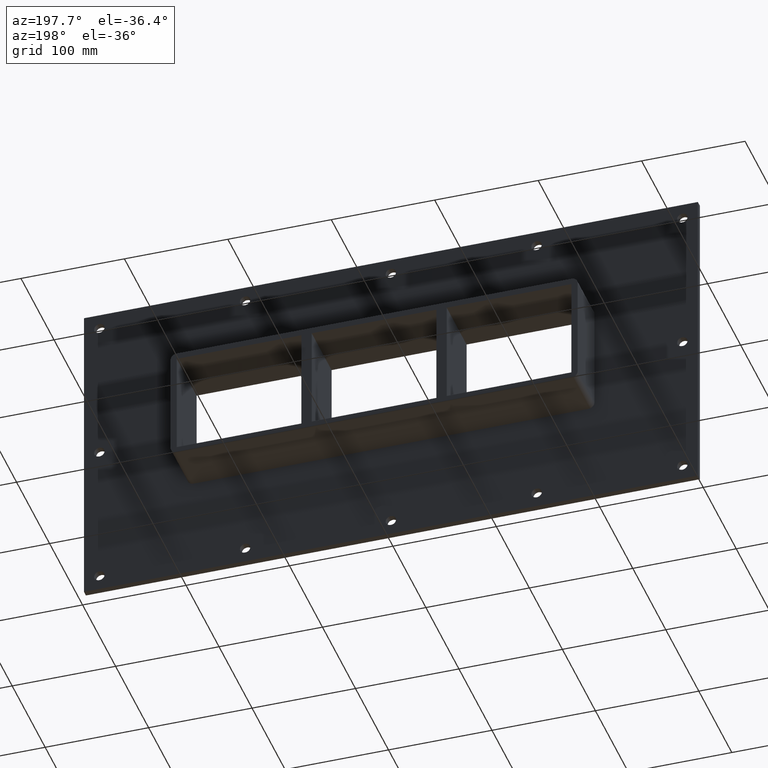
[diagram: clean part render]
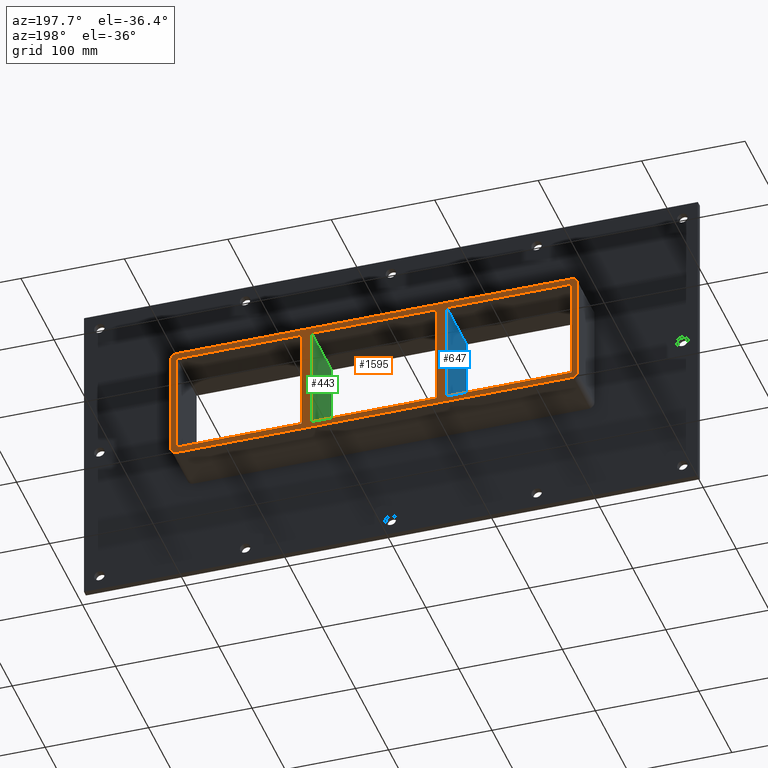
[diagram: same view with three faces highlighted in distinct colors, each labeled with its STEP entity id]
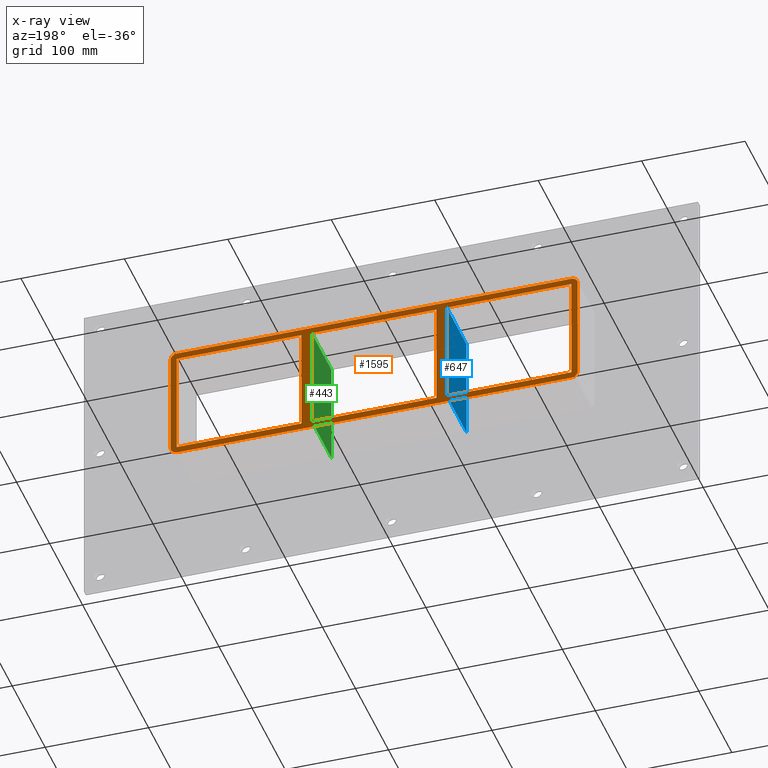
[diagram: x-ray of the same camera — body ghosted, the three highlighted faces saturated]
A machine part, auxiliary view with three faces highlighted in distinct colors.
The next image is the same camera in x-ray (body ghosted, the three faces saturated) — at least one of them is partly hidden behind the body in this view.
Their STEP definitions:

[orange] entity #1595 — the highlighted planar face has unit normal (0, 1, 0).
#419=CARTESIAN_POINT('',(60.249999999998671,57.0,50.500000000000007));
#420=VERTEX_POINT('',#419);
#427=CARTESIAN_POINT('',(60.249999999998707,57.0,-50.499999999999986));
#428=VERTEX_POINT('',#427);
#429=CARTESIAN_POINT('',(60.249999999998707,57.0,-50.499999999999986));
#430=DIRECTION('',(0.0,0.0,1.0));
#431=VECTOR('',#430,101.0);
#432=LINE('',#429,#431);
#433=EDGE_CURVE('',#428,#420,#432,.T.);
#459=CARTESIAN_POINT('',(70.250000000003638,57.0,-50.499999999984233));
#460=VERTEX_POINT('',#459);
#467=CARTESIAN_POINT('',(70.250000000003638,57.0,50.500000000000007));
#468=VERTEX_POINT('',#467);
#469=CARTESIAN_POINT('',(70.250000000003638,57.0,50.500000000000007));
#470=DIRECTION('',(0.0,0.0,-1.0));
#471=VECTOR('',#470,100.99999999998424);
#472=LINE('',#469,#471);
#473=EDGE_CURVE('',#468,#460,#472,.T.);
#490=CARTESIAN_POINT('',(-60.249999999996362,57.0,-50.499999999984233));
#491=VERTEX_POINT('',#490);
#492=CARTESIAN_POINT('',(-60.249999999996362,57.0,-50.499999999999986));
#493=DIRECTION('',(1.0,0.0,0.0));
#494=VECTOR('',#493,120.49999999999507);
#495=LINE('',#492,#494);
#496=EDGE_CURVE('',#491,#428,#495,.T.);
#529=CARTESIAN_POINT('',(190.75000000000006,57.0,-50.499999999999986));
#530=VERTEX_POINT('',#529);
#537=CARTESIAN_POINT('',(70.250000000003638,57.0,-50.499999999999986));
#538=DIRECTION('',(1.0,0.0,0.0));
#539=VECTOR('',#538,120.49999999999642);
#540=LINE('',#537,#539);
#541=EDGE_CURVE('',#460,#530,#540,.T.);
#552=CARTESIAN_POINT('',(190.75000000000006,57.0,50.500000000000007));
#553=VERTEX_POINT('',#552);
#554=CARTESIAN_POINT('',(190.75000000000006,57.0,50.500000000000007));
#555=DIRECTION('',(-1.0,0.0,0.0));
#556=VECTOR('',#555,120.4999999999964);
#557=LINE('',#554,#556);
#558=EDGE_CURVE('',#553,#468,#557,.T.);
#591=CARTESIAN_POINT('',(-60.249999999996362,57.0,50.500000000000007));
#592=VERTEX_POINT('',#591);
#599=CARTESIAN_POINT('',(60.249999999998678,57.0,50.500000000000007));
#600=DIRECTION('',(-1.0,0.0,0.0));
#601=VECTOR('',#600,120.49999999999504);
#602=LINE('',#599,#601);
#603=EDGE_CURVE('',#420,#592,#602,.T.);
#623=CARTESIAN_POINT('',(-70.250000000001336,57.0,50.500000000000007));
#624=VERTEX_POINT('',#623);
#631=CARTESIAN_POINT('',(-70.250000000001307,57.0,-50.499999999999986));
#632=VERTEX_POINT('',#631);
#633=CARTESIAN_POINT('',(-70.250000000001307,57.0,-50.499999999999986));
#634=DIRECTION('',(0.0,0.0,1.0));
#635=VECTOR('',#634,101.0);
#636=LINE('',#633,#635);
#637=EDGE_CURVE('',#632,#624,#636,.T.);
#660=CARTESIAN_POINT('',(-60.249999999996362,57.0,50.500000000000007));
#661=DIRECTION('',(0.0,0.0,-1.0));
#662=VECTOR('',#661,100.99999999998424);
#663=LINE('',#660,#662);
#664=EDGE_CURVE('',#592,#491,#663,.T.);
#676=CARTESIAN_POINT('',(-190.75,57.0,-50.499999999999986));
#677=VERTEX_POINT('',#676);
#678=CARTESIAN_POINT('',(-190.75000000000003,57.0,-50.499999999999986));
#679=DIRECTION('',(1.0,0.0,0.0));
#680=VECTOR('',#679,120.49999999999869);
#681=LINE('',#678,#680);
#682=EDGE_CURVE('',#677,#632,#681,.T.);
#715=CARTESIAN_POINT('',(-190.75,57.0,50.500000000000007));
#716=VERTEX_POINT('',#715);
#723=CARTESIAN_POINT('',(-70.250000000001336,57.0,50.500000000000007));
#724=DIRECTION('',(-1.0,0.0,0.0));
#725=VECTOR('',#724,120.49999999999866);
#726=LINE('',#723,#725);
#727=EDGE_CURVE('',#624,#716,#726,.T.);
#1098=CARTESIAN_POINT('',(-190.75000000000003,57.0,50.500000000000007));
#1099=DIRECTION('',(0.0,0.0,-1.0));
#1100=VECTOR('',#1099,101.0);
#1101=LINE('',#1098,#1100);
#1102=EDGE_CURVE('',#716,#677,#1101,.T.);
#1152=CARTESIAN_POINT('',(196.75000000000006,57.0,50.500000000000007));
#1153=VERTEX_POINT('',#1152);
#1160=CARTESIAN_POINT('',(190.75000000000003,57.0,56.5));
#1161=VERTEX_POINT('',#1160);
#1162=CARTESIAN_POINT('',(190.75000000000003,57.0,50.500000000000007));
#1163=DIRECTION('',(0.0,-1.0,0.0));
#1164=DIRECTION('',(0.707106781186549,0.0,0.707106781186546));
#1165=AXIS2_PLACEMENT_3D('',#1162,#1163,#1164);
#1166=CIRCLE('',#1165,6.000000000000001);
#1167=EDGE_CURVE('',#1153,#1161,#1166,.T.);
#1208=CARTESIAN_POINT('',(196.75000000000006,57.0,-50.500000000000007));
#1209=VERTEX_POINT('',#1208);
#1216=CARTESIAN_POINT('',(196.75000000000006,57.0,50.5));
#1217=DIRECTION('',(0.0,0.0,-1.0));
#1218=VECTOR('',#1217,101.00000000000001);
#1219=LINE('',#1216,#1218);
#1220=EDGE_CURVE('',#1153,#1209,#1219,.T.);
#1281=CARTESIAN_POINT('',(190.75000000000003,57.0,-56.5));
#1282=VERTEX_POINT('',#1281);
#1289=CARTESIAN_POINT('',(190.75000000000003,57.0,-50.500000000000007));
#1290=DIRECTION('',(0.0,-1.0,0.0));
#1291=DIRECTION('',(0.707106781186549,0.0,-0.707106781186546));
#1292=AXIS2_PLACEMENT_3D('',#1289,#1290,#1291);
#1293=CIRCLE('',#1292,6.000000000000001);
#1294=EDGE_CURVE('',#1282,#1209,#1293,.T.);
#1355=CARTESIAN_POINT('',(-190.75000000000003,57.0,-56.5));
#1356=VERTEX_POINT('',#1355);
#1363=CARTESIAN_POINT('',(190.75000000000006,57.0,-56.5));
#1364=DIRECTION('',(-1.0,0.0,0.0));
#1365=VECTOR('',#1364,381.50000000000006);
#1366=LINE('',#1363,#1365);
#1367=EDGE_CURVE('',#1282,#1356,#1366,.T.);
#1460=CARTESIAN_POINT('',(-196.75000000000006,57.0,-50.500000000000007));
#1461=VERTEX_POINT('',#1460);
#1468=CARTESIAN_POINT('',(-190.75000000000003,57.0,-50.500000000000007));
#1469=DIRECTION('',(0.0,-1.0,0.0));
#1470=DIRECTION('',(-0.707106781186549,0.0,-0.707106781186546));
#1471=AXIS2_PLACEMENT_3D('',#1468,#1469,#1470);
#1472=CIRCLE('',#1471,6.000000000000001);
#1473=EDGE_CURVE('',#1461,#1356,#1472,.T.);
#1485=CARTESIAN_POINT('',(-196.75000000000006,57.0,50.500000000000007));
#1486=VERTEX_POINT('',#1485);
#1493=CARTESIAN_POINT('',(-196.75000000000006,57.0,-50.5));
#1494=DIRECTION('',(0.0,0.0,1.0));
#1495=VECTOR('',#1494,101.00000000000001);
#1496=LINE('',#1493,#1495);
#1497=EDGE_CURVE('',#1461,#1486,#1496,.T.);
#1509=CARTESIAN_POINT('',(-190.75000000000003,57.0,56.5));
#1510=VERTEX_POINT('',#1509);
#1517=CARTESIAN_POINT('',(-190.75000000000003,57.0,50.500000000000007));
#1518=DIRECTION('',(0.0,-1.0,0.0));
#1519=DIRECTION('',(-0.707106781186549,0.0,0.707106781186546));
#1520=AXIS2_PLACEMENT_3D('',#1517,#1518,#1519);
#1521=CIRCLE('',#1520,6.000000000000001);
#1522=EDGE_CURVE('',#1510,#1486,#1521,.T.);
#1535=CARTESIAN_POINT('',(-190.75000000000006,57.0,56.5));
#1536=DIRECTION('',(1.0,0.0,0.0));
#1537=VECTOR('',#1536,381.50000000000006);
#1538=LINE('',#1535,#1537);
#1539=EDGE_CURVE('',#1510,#1161,#1538,.T.);
#1553=CARTESIAN_POINT('',(190.75000000000006,57.0,-50.5));
#1554=DIRECTION('',(0.0,0.0,1.0));
#1555=VECTOR('',#1554,101.0);
#1556=LINE('',#1553,#1555);
#1557=EDGE_CURVE('',#530,#553,#1556,.T.);
#1562=CARTESIAN_POINT('',(0.0,57.0,0.0));
#1563=DIRECTION('',(0.0,1.0,0.0));
#1564=DIRECTION('',(0.0,0.0,1.0));
#1565=AXIS2_PLACEMENT_3D('',#1562,#1563,#1564);
#1566=PLANE('',#1565);
#1567=ORIENTED_EDGE('',*,*,#1294,.F.);
#1568=ORIENTED_EDGE('',*,*,#1367,.T.);
#1569=ORIENTED_EDGE('',*,*,#1473,.F.);
#1570=ORIENTED_EDGE('',*,*,#1497,.T.);
#1571=ORIENTED_EDGE('',*,*,#1522,.F.);
#1572=ORIENTED_EDGE('',*,*,#1539,.T.);
#1573=ORIENTED_EDGE('',*,*,#1167,.F.);
#1574=ORIENTED_EDGE('',*,*,#1220,.T.);
#1575=EDGE_LOOP('',(#1567,#1568,#1569,#1570,#1571,#1572,#1573,#1574));
#1576=FACE_OUTER_BOUND('',#1575,.T.);
#1577=ORIENTED_EDGE('',*,*,#541,.T.);
#1578=ORIENTED_EDGE('',*,*,#1557,.T.);
#1579=ORIENTED_EDGE('',*,*,#558,.T.);
#1580=ORIENTED_EDGE('',*,*,#473,.T.);
#1581=EDGE_LOOP('',(#1577,#1578,#1579,#1580));
#1582=FACE_BOUND('',#1581,.T.);
#1583=ORIENTED_EDGE('',*,*,#433,.T.);
#1584=ORIENTED_EDGE('',*,*,#603,.T.);
#1585=ORIENTED_EDGE('',*,*,#664,.T.);
#1586=ORIENTED_EDGE('',*,*,#496,.T.);
#1587=EDGE_LOOP('',(#1583,#1584,#1585,#1586));
#1588=FACE_BOUND('',#1587,.T.);
#1589=ORIENTED_EDGE('',*,*,#637,.T.);
#1590=ORIENTED_EDGE('',*,*,#727,.T.);
#1591=ORIENTED_EDGE('',*,*,#1102,.T.);
#1592=ORIENTED_EDGE('',*,*,#682,.T.);
#1593=EDGE_LOOP('',(#1589,#1590,#1591,#1592));
#1594=FACE_BOUND('',#1593,.T.);
#1595=ADVANCED_FACE('',(#1576,#1582,#1588,#1594),#1566,.T.);

[blue] entity #647 — the highlighted planar face has unit normal (-1, 0, 0).
#608=CARTESIAN_POINT('',(-70.250000000001307,-3.0,-50.499999999999986));
#609=DIRECTION('',(-1.0,0.0,0.0));
#610=DIRECTION('',(0.0,0.0,1.0));
#611=AXIS2_PLACEMENT_3D('',#608,#609,#610);
#612=PLANE('',#611);
#613=CARTESIAN_POINT('',(-70.250000000001307,-3.0,-50.499999999999986));
#614=VERTEX_POINT('',#613);
#615=CARTESIAN_POINT('',(-70.250000000001336,-3.0,50.500000000000007));
#616=VERTEX_POINT('',#615);
#617=CARTESIAN_POINT('',(-70.250000000001307,-3.0,-50.499999999999986));
#618=DIRECTION('',(0.0,0.0,1.0));
#619=VECTOR('',#618,101.0);
#620=LINE('',#617,#619);
#621=EDGE_CURVE('',#614,#616,#620,.T.);
#622=ORIENTED_EDGE('',*,*,#621,.T.);
#623=CARTESIAN_POINT('',(-70.250000000001336,57.0,50.500000000000007));
#624=VERTEX_POINT('',#623);
#625=CARTESIAN_POINT('',(-70.250000000001336,57.000000000000007,50.500000000000007));
#626=DIRECTION('',(0.0,-1.0,0.0));
#627=VECTOR('',#626,60.000000000000007);
#628=LINE('',#625,#627);
#629=EDGE_CURVE('',#624,#616,#628,.T.);
#630=ORIENTED_EDGE('',*,*,#629,.F.);
#631=CARTESIAN_POINT('',(-70.250000000001307,57.0,-50.499999999999986));
#632=VERTEX_POINT('',#631);
#633=CARTESIAN_POINT('',(-70.250000000001307,57.0,-50.499999999999986));
#634=DIRECTION('',(0.0,0.0,1.0));
#635=VECTOR('',#634,101.0);
#636=LINE('',#633,#635);
#637=EDGE_CURVE('',#632,#624,#636,.T.);
#638=ORIENTED_EDGE('',*,*,#637,.F.);
#639=CARTESIAN_POINT('',(-70.250000000001307,-3.0,-50.499999999999986));
#640=DIRECTION('',(0.0,1.0,0.0));
#641=VECTOR('',#640,60.000000000000007);
#642=LINE('',#639,#641);
#643=EDGE_CURVE('',#614,#632,#642,.T.);
#644=ORIENTED_EDGE('',*,*,#643,.F.);
#645=EDGE_LOOP('',(#622,#630,#638,#644));
#646=FACE_OUTER_BOUND('',#645,.T.);
#647=ADVANCED_FACE('',(#646),#612,.T.);

[green] entity #443 — the highlighted planar face has unit normal (-1, 0, 0).
#404=CARTESIAN_POINT('',(60.249999999998707,-3.0,-50.499999999999986));
#405=DIRECTION('',(-1.0,0.0,0.0));
#406=DIRECTION('',(0.0,0.0,1.0));
#407=AXIS2_PLACEMENT_3D('',#404,#405,#406);
#408=PLANE('',#407);
#409=CARTESIAN_POINT('',(60.249999999998707,-3.0,-50.499999999999986));
#410=VERTEX_POINT('',#409);
#411=CARTESIAN_POINT('',(60.249999999998671,-3.0,50.500000000000007));
#412=VERTEX_POINT('',#411);
#413=CARTESIAN_POINT('',(60.249999999998707,-3.0,-50.499999999999986));
#414=DIRECTION('',(0.0,0.0,1.0));
#415=VECTOR('',#414,101.0);
#416=LINE('',#413,#415);
#417=EDGE_CURVE('',#410,#412,#416,.T.);
#418=ORIENTED_EDGE('',*,*,#417,.T.);
#419=CARTESIAN_POINT('',(60.249999999998671,57.0,50.500000000000007));
#420=VERTEX_POINT('',#419);
#421=CARTESIAN_POINT('',(60.249999999998671,57.000000000000007,50.500000000000007));
#422=DIRECTION('',(0.0,-1.0,0.0));
#423=VECTOR('',#422,60.000000000000007);
#424=LINE('',#421,#423);
#425=EDGE_CURVE('',#420,#412,#424,.T.);
#426=ORIENTED_EDGE('',*,*,#425,.F.);
#427=CARTESIAN_POINT('',(60.249999999998707,57.0,-50.499999999999986));
#428=VERTEX_POINT('',#427);
#429=CARTESIAN_POINT('',(60.249999999998707,57.0,-50.499999999999986));
#430=DIRECTION('',(0.0,0.0,1.0));
#431=VECTOR('',#430,101.0);
#432=LINE('',#429,#431);
#433=EDGE_CURVE('',#428,#420,#432,.T.);
#434=ORIENTED_EDGE('',*,*,#433,.F.);
#435=CARTESIAN_POINT('',(60.249999999998707,-3.0,-50.499999999999986));
#436=DIRECTION('',(0.0,1.0,0.0));
#437=VECTOR('',#436,60.000000000000007);
#438=LINE('',#435,#437);
#439=EDGE_CURVE('',#410,#428,#438,.T.);
#440=ORIENTED_EDGE('',*,*,#439,.F.);
#441=EDGE_LOOP('',(#418,#426,#434,#440));
#442=FACE_OUTER_BOUND('',#441,.T.);
#443=ADVANCED_FACE('',(#442),#408,.T.);